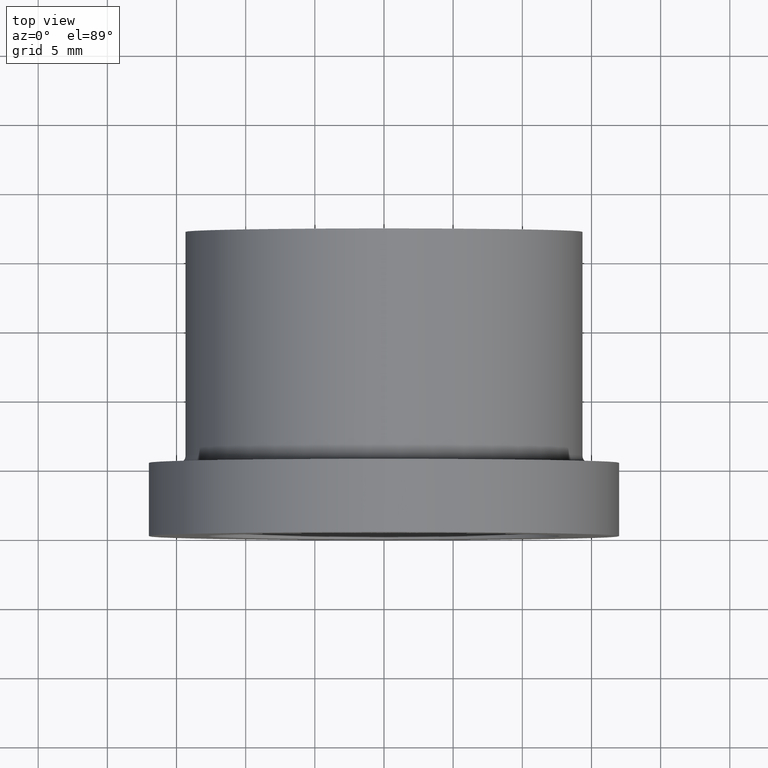
[diagram: clean part render]
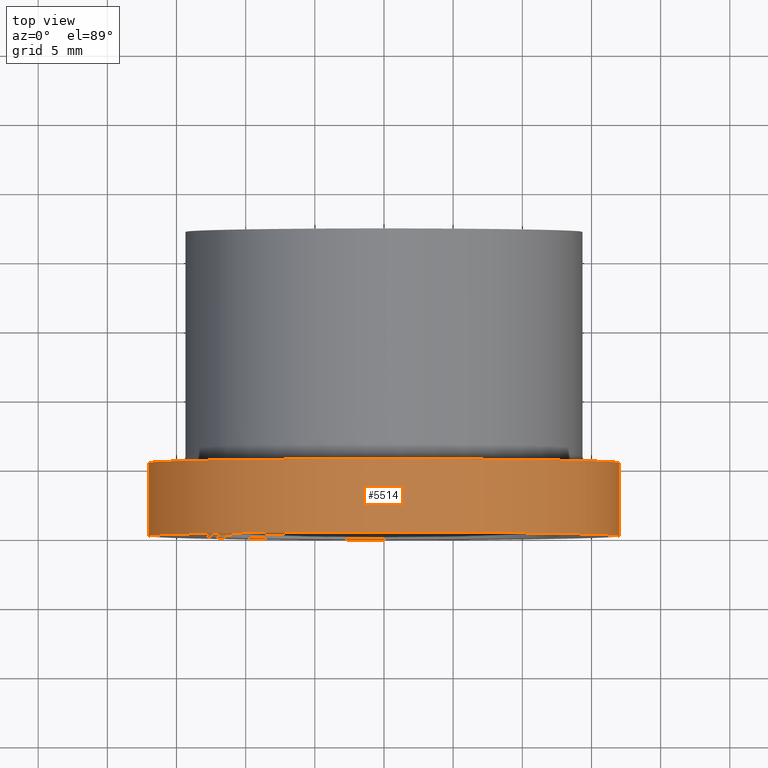
[diagram: same view with one face highlighted and labeled with its STEP entity id]
A machine part, top view. The second image highlights one B-rep face of the part: STEP entity #5514.
In plain terms, the highlighted cylindrical surface (partial cylindrical patch) has radius 17 mm, axis along (-0, 1, -0).
Its self-contained STEP definition (entity closure, byte-faithful):
#806 = CARTESIAN_POINT ( 'NONE',  ( -17.00000000000000000, 22.00000000000000000, 0.0000000000000000000 ) ) ;
#967 = DIRECTION ( 'NONE',  ( -1.391644089940172800E-017, 1.000000000000000000, -0.0000000000000000000 ) ) ;
#1670 = CARTESIAN_POINT ( 'NONE',  ( 17.00000000000000000, 5.299999999999998900, 2.081899558550500300E-015 ) ) ;
#2152 = EDGE_CURVE ( 'NONE', #3721, #7563, #6489, .T. ) ;
#2627 = EDGE_CURVE ( 'NONE', #10215, #7563, #2630, .T. ) ;
#2630 = CIRCLE ( 'NONE', #3836, 17.00000000000000000 ) ;
#2772 = VECTOR ( 'NONE', #10448, 1000.000000000000000 ) ;
#3119 = AXIS2_PLACEMENT_3D ( 'NONE', #9789, #5993, #6179 ) ;
#3316 = AXIS2_PLACEMENT_3D ( 'NONE', #7928, #7047, #6005 ) ;
#3581 = ORIENTED_EDGE ( 'NONE', *, *, #8429, .F. ) ;
#3706 = CARTESIAN_POINT ( 'NONE',  ( 17.00000000000000000, 2.365794952898294000E-016, 2.081899558550500300E-015 ) ) ;
#3721 = VERTEX_POINT ( 'NONE', #3706 ) ;
#3768 = CARTESIAN_POINT ( 'NONE',  ( 17.00000000000000000, 22.00000000000000000, 2.081899558550500300E-015 ) ) ;
#3836 = AXIS2_PLACEMENT_3D ( 'NONE', #8509, #967, #8585 ) ;
#4031 = CYLINDRICAL_SURFACE ( 'NONE', #3316, 17.00000000000000000 ) ;
#4436 = VERTEX_POINT ( 'NONE', #11059 ) ;
#5514 = ADVANCED_FACE ( 'NONE', ( #5655 ), #4031, .T. ) ;
#5543 = CIRCLE ( 'NONE', #3119, 17.00000000000000000 ) ;
#5655 = FACE_OUTER_BOUND ( 'NONE', #9261, .T. ) ;
#5853 = ORIENTED_EDGE ( 'NONE', *, *, #2627, .F. ) ;
#5993 = DIRECTION ( 'NONE',  ( -1.391644089940172800E-017, 1.000000000000000000, -0.0000000000000000000 ) ) ;
#6005 = DIRECTION ( 'NONE',  ( -1.000000000000000000, 0.0000000000000000000, 0.0000000000000000000 ) ) ;
#6165 = VECTOR ( 'NONE', #6480, 1000.000000000000000 ) ;
#6179 = DIRECTION ( 'NONE',  ( -1.000000000000000000, -1.391644089940172800E-017, 0.0000000000000000000 ) ) ;
#6480 = DIRECTION ( 'NONE',  ( -1.391644089940172800E-017, 1.000000000000000000, -0.0000000000000000000 ) ) ;
#6489 = LINE ( 'NONE', #3768, #2772 ) ;
#7047 = DIRECTION ( 'NONE',  ( -1.391644089940172800E-017, 1.000000000000000000, -0.0000000000000000000 ) ) ;
#7563 = VERTEX_POINT ( 'NONE', #1670 ) ;
#7928 = CARTESIAN_POINT ( 'NONE',  ( -3.061616997868380200E-016, 22.00000000000000000, 0.0000000000000000000 ) ) ;
#8103 = CARTESIAN_POINT ( 'NONE',  ( -17.00000000000000000, 5.299999999999998900, 0.0000000000000000000 ) ) ;
#8429 = EDGE_CURVE ( 'NONE', #4436, #10215, #9607, .T. ) ;
#8509 = CARTESIAN_POINT ( 'NONE',  ( -7.375713676682917400E-017, 5.299999999999998900, 0.0000000000000000000 ) ) ;
#8585 = DIRECTION ( 'NONE',  ( -1.000000000000000000, 0.0000000000000000000, 0.0000000000000000000 ) ) ;
#8679 = EDGE_CURVE ( 'NONE', #4436, #3721, #5543, .T. ) ;
#9102 = ORIENTED_EDGE ( 'NONE', *, *, #8679, .T. ) ;
#9261 = EDGE_LOOP ( 'NONE', ( #9102, #10560, #5853, #3581 ) ) ;
#9607 = LINE ( 'NONE', #806, #6165 ) ;
#9789 = CARTESIAN_POINT ( 'NONE',  ( 0.0000000000000000000, 0.0000000000000000000, 0.0000000000000000000 ) ) ;
#10215 = VERTEX_POINT ( 'NONE', #8103 ) ;
#10448 = DIRECTION ( 'NONE',  ( -1.391644089940172800E-017, 1.000000000000000000, -0.0000000000000000000 ) ) ;
#10560 = ORIENTED_EDGE ( 'NONE', *, *, #2152, .T. ) ;
#11059 = CARTESIAN_POINT ( 'NONE',  ( -17.00000000000000000, -2.365794952898294000E-016, 0.0000000000000000000 ) ) ;